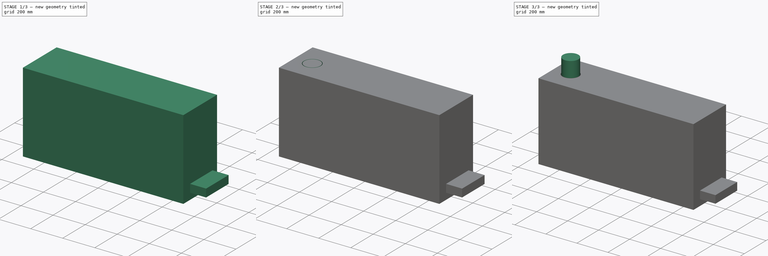
[diagram: build sequence overview — one tinted view per stage of 3, left to right]
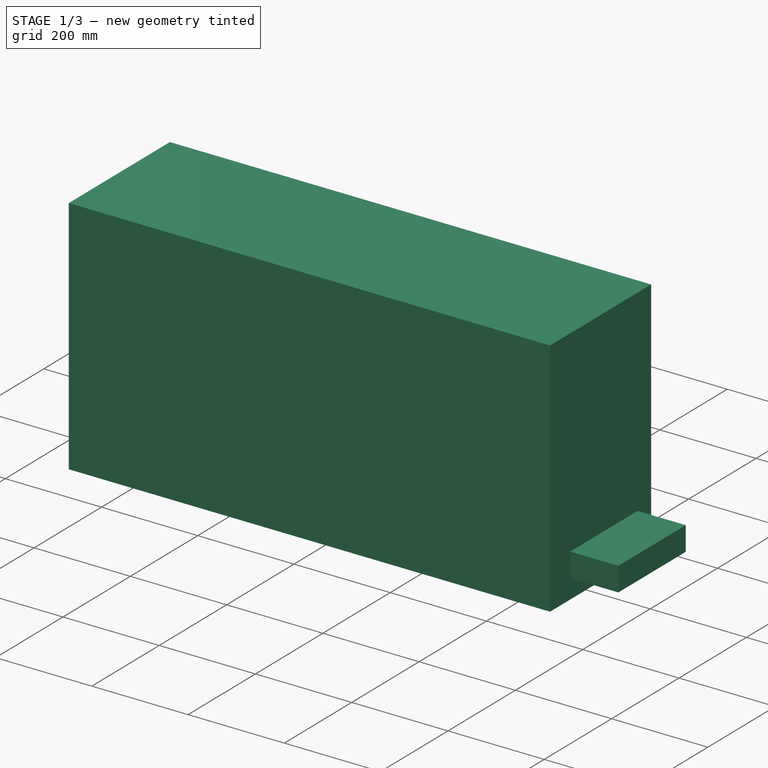
[diagram: stage 1 of 3 — iso view after this stage's code; geometry added in this stage tinted green]
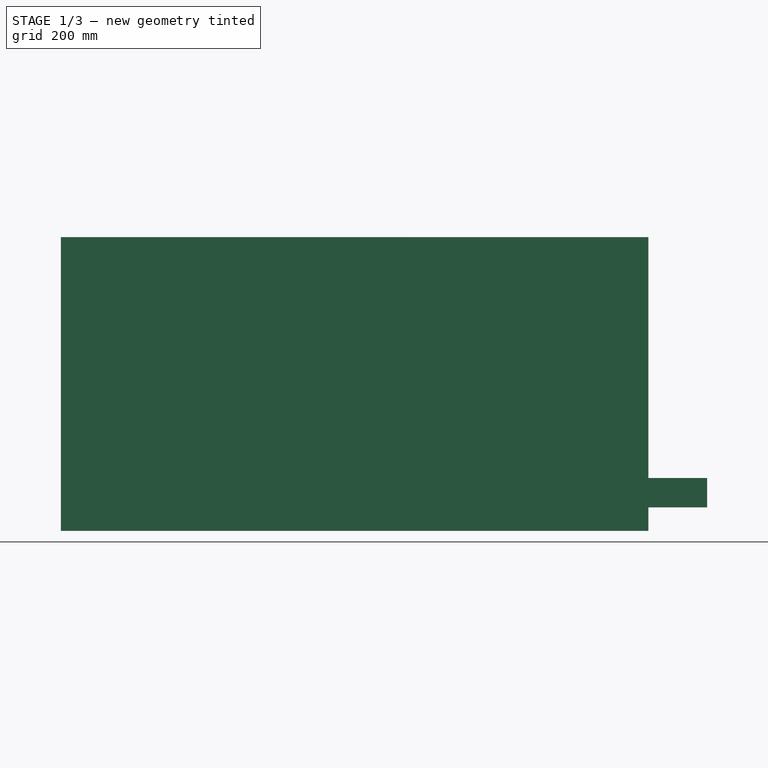
[diagram: stage 1 of 3 — front view after this stage's code; geometry added in this stage tinted green]
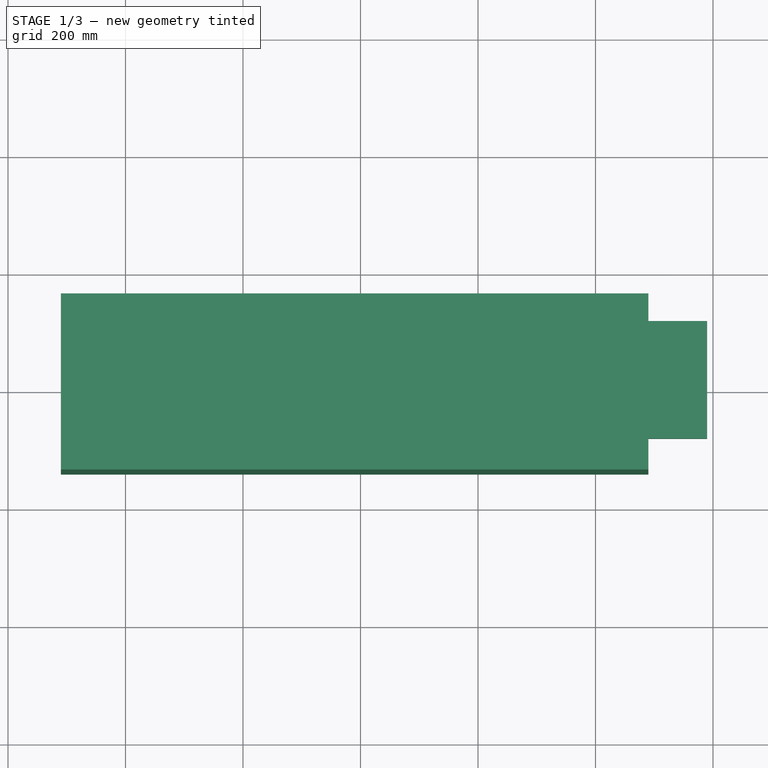
[diagram: stage 1 of 3 — top view after this stage's code; geometry added in this stage tinted green]
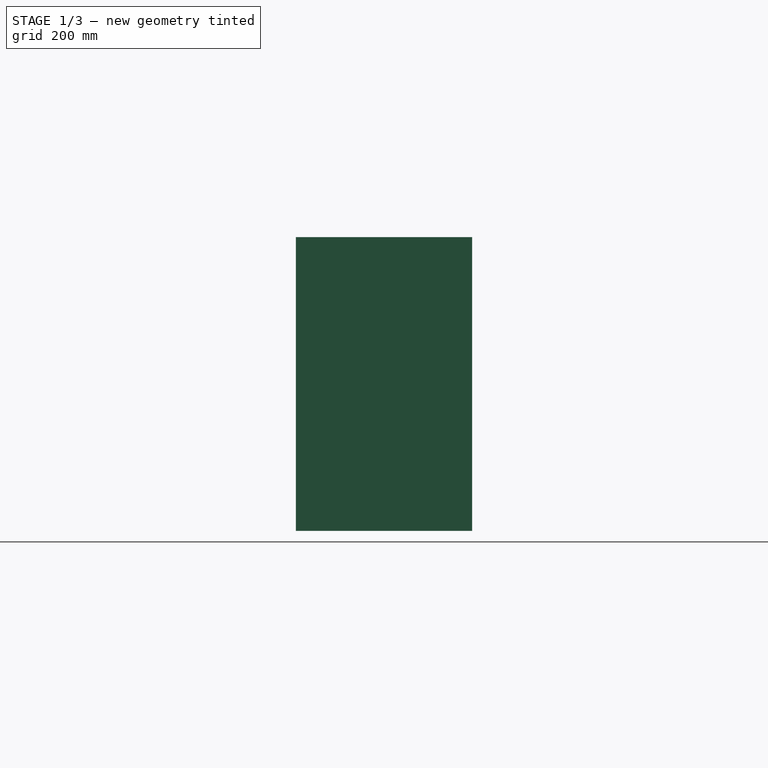
[diagram: stage 1 of 3 — right view after this stage's code; geometry added in this stage tinted green]
FCSTD DOCUMENT  (FreeCAD 0.21R33771 (Git))
Label: model
License: All rights reserved
LicenseURL: http://en.wikipedia.org/wiki/All_rights_reserved
objects: Part::Feature×15, Sketcher::SketchObject×2, PartDesign::Body×2, Part::Box×2, PartDesign::Revolution×1, Part::Cut×1, PartDesign::FeatureBase×1, PartDesign::Pad×1
note: 27 computed .brp shape members not serialized (recipe doc carries the construction recipe); baked Part::Feature solids carry a one-line shape summary decoded from their .brp

FEATURE [PartDesign::Body] Body
  Group = -> [Sketch,Revolution]
  Origin = -> Origin
  Tip = -> Revolution
FEATURE [Part::Box] Box  label="立方体"
  AttacherType = Attacher::AttachEngine3D
  Height = 500
  Length = 1000
  Placement = pos=(-110,-140,0) rot=(0,0,1;0rad)
  Width = 300
FEATURE [PartDesign::Body] Body001
  BaseFeature = -> Cut
  Group = -> [BaseFeature,Sketch001,Pad]
  Origin = -> Origin001
  Tip = -> Pad
FEATURE [Part::Box] Box001  label="立方体001"
  AttacherType = Attacher::AttachEngine3D
  Height = 50
  Length = 100
  Placement = pos=(890,-80,40) rot=(0,0,1;0rad)
  Width = 200
FEATURE [Part::Feature] Face  label="pumpInTop2"
  shape: bbox 100 x 100 x 100 mm, 1 faces, 0 solids (baked)
FEATURE [Part::Feature] Face001  label="pumpInTop1"
  shape: bbox 100 x 100 x 350 mm, 1 faces, 0 solids (baked)
FEATURE [Part::Feature] Face002  label="outlet"
  Placement = pos=(0,0,100) rot=(0,0,1;0rad)
  shape: bbox 100 x 100 x 2e-07 mm, 1 faces, 0 solids (baked)
FEATURE [Part::Feature] Face005  label="pumpInUnder"
  shape: bbox 156 x 156 x 2e-07 mm, 1 faces, 0 solids (baked)
FEATURE [Part::Feature] Face008  label="pumpOutTop"
  shape: bbox 106 x 106 x 350.7 mm, 1 faces, 0 solids (baked)
FEATURE [Part::Feature] Face009  label="Zmax"
  shape: bbox 1000 x 300 x 2e-07 mm, 1 faces, 0 solids (baked)
FEATURE [Part::Feature] Face010  label="Xmin"
  Placement = pos=(-110,-140,0) rot=(0,0,1;0rad)
  shape: bbox 2e-07 x 300 x 500 mm, 1 faces, 0 solids (baked)
FEATURE [Part::Feature] Face011  label="Ymax"
  Placement = pos=(-110,-140,0) rot=(0,0,1;0rad)
  shape: bbox 1000 x 2e-07 x 500 mm, 1 faces, 0 solids (baked)
FEATURE [Part::Feature] Face012  label="Ymin"
  Placement = pos=(-110,-140,0) rot=(0,0,1;0rad)
  shape: bbox 1000 x 2e-07 x 500 mm, 1 faces, 0 solids (baked)
FEATURE [Part::Feature] Face013  label="Xmax"
  shape: bbox 2e-07 x 300 x 500 mm, 1 faces, 0 solids (baked)
FEATURE [Part::Feature] Face014  label="Zmin"
  Placement = pos=(-110,-140,0) rot=(0,0,1;0rad)
  shape: bbox 1000 x 300 x 2e-07 mm, 1 faces, 0 solids (baked)
FEATURE [Part::Feature] Face019  label="inlet"
  Placement = pos=(890,-80,40) rot=(0,0,1;0rad)
  shape: bbox 2e-07 x 200 x 50 mm, 1 faces, 0 solids (baked)
FEATURE [Part::Feature] Shell  label="inletWall"
  shape: bbox 100 x 200 x 50 mm, 4 faces, 0 solids (baked)
FEATURE [Part::Feature] Shell001  label="pumpOutUnder"
  shape: bbox 156 x 156 x 49.26 mm, 2 faces, 0 solids (baked)
FEATURE [Part::Feature] Shell002  label="pumpInUnder001"
  shape: bbox 150 x 150 x 50 mm, 2 faces, 0 solids (baked)
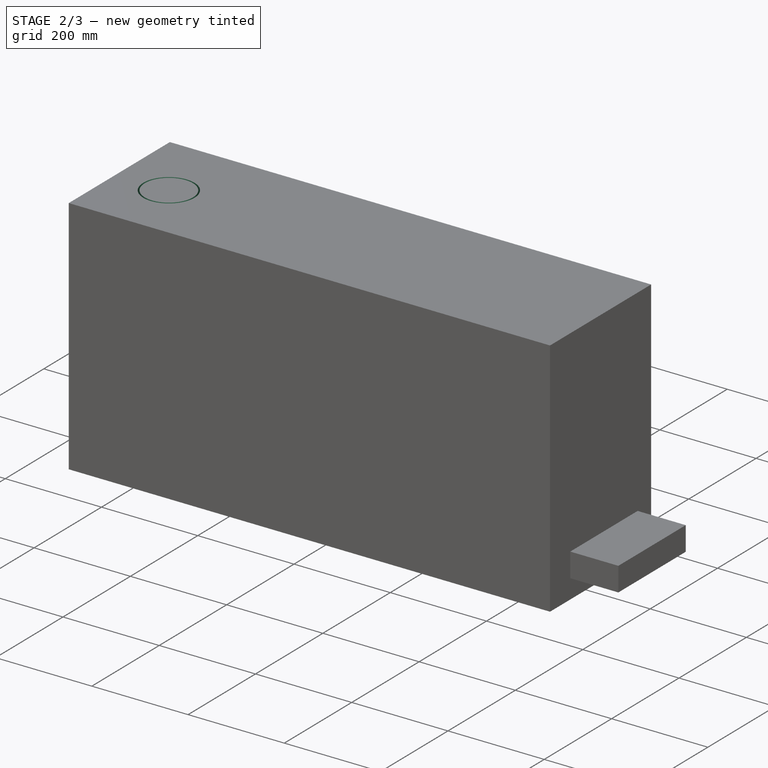
[diagram: stage 2 of 3 — iso view after this stage's code; geometry added in this stage tinted green]
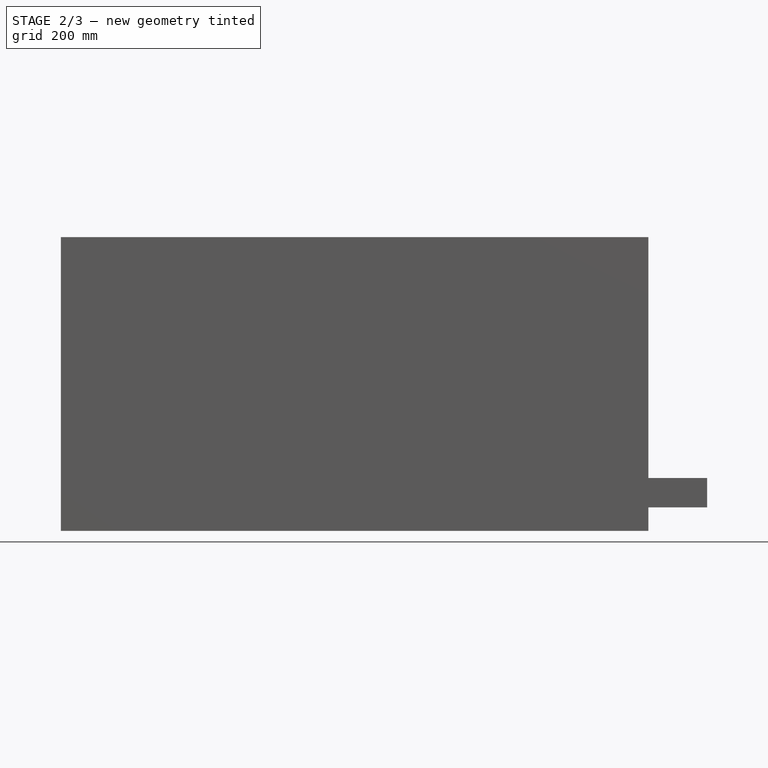
[diagram: stage 2 of 3 — front view after this stage's code; geometry added in this stage tinted green]
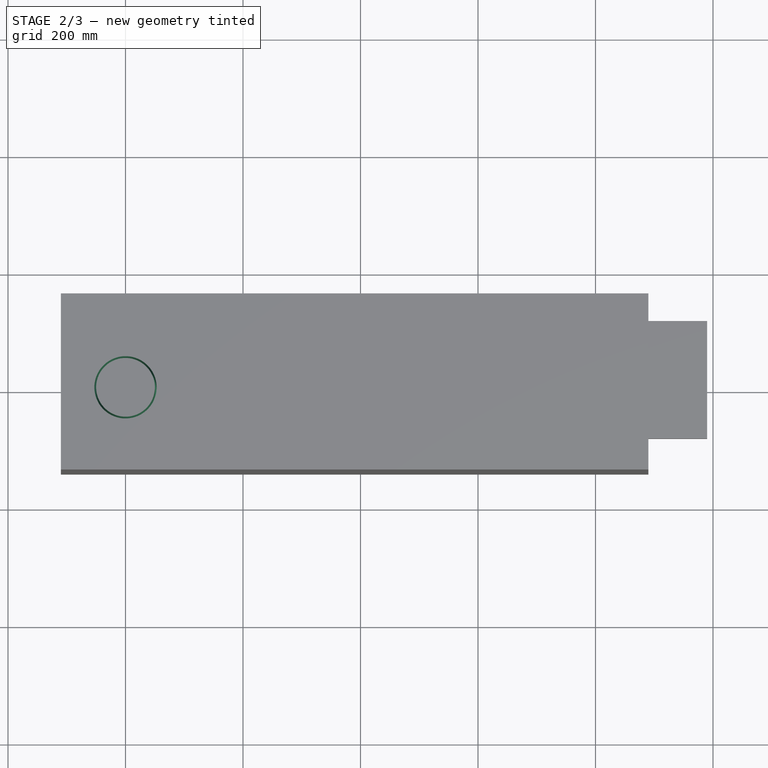
[diagram: stage 2 of 3 — top view after this stage's code; geometry added in this stage tinted green]
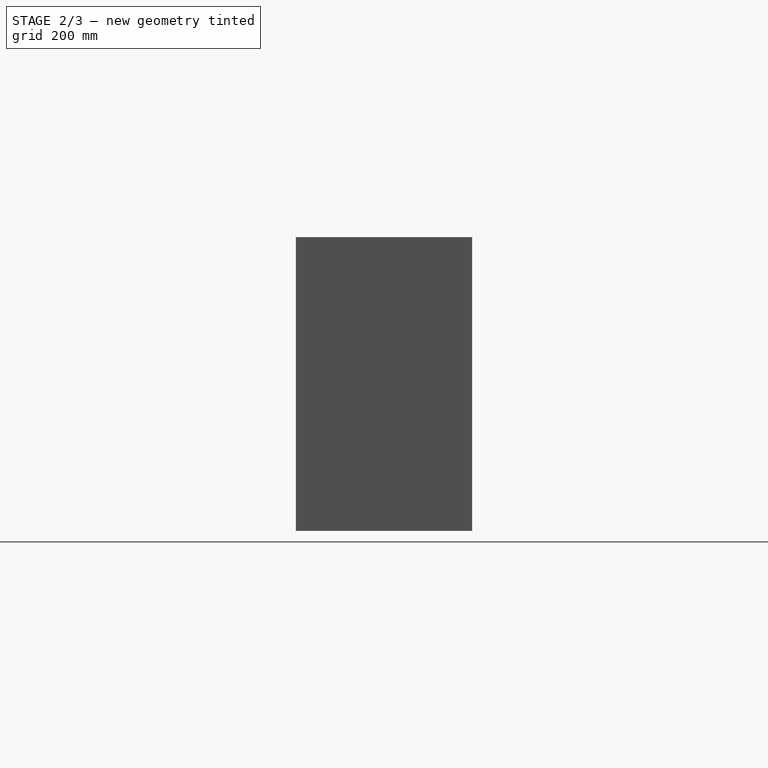
[diagram: stage 2 of 3 — right view after this stage's code; geometry added in this stage tinted green]
FEATURE [Sketcher::SketchObject] Sketch
  FullyConstrained = true
  MapMode = 5
  Placement = pos=(0,0,0) rot=(1,0,0;1.5708rad)
  Support = -> [XZ_Plane]
  sketch-geometry (8):
    g0: LineSegment StartX=-50 StartY=649.259 StartZ=0 EndX=-50 EndY=150 EndZ=0
    g1: LineSegment StartX=-51.1496 StartY=145.345 StartZ=0 EndX=-75 EndY=100 EndZ=0
    g2: LineSegment StartX=-75 StartY=100 StartZ=0 EndX=-78 EndY=100 EndZ=0
    g3: LineSegment StartX=-78 StartY=100 StartZ=0 EndX=-53.8047 EndY=146.001 EndZ=0
    g4: LineSegment StartX=-53 StartY=149.259 StartZ=0 EndX=-53 EndY=649.259 EndZ=0
    g5: LineSegment StartX=-53 StartY=649.259 StartZ=0 EndX=-50 EndY=649.259 EndZ=0
    g6: ArcOfCircle CenterX=-60 CenterY=149.259 CenterZ=0 NormalX=0 NormalY=0 NormalZ=1 AngleXU=0 Radius=7 StartAngle=5.79897 EndAngle=6.28319
    g7: ArcOfCircle CenterX=-60 CenterY=150 CenterZ=0 NormalX=0 NormalY=0 NormalZ=1 AngleXU=0 Radius=10 StartAngle=5.79897 EndAngle=6.28319
  constraints (22):
    c: Vertical(g0)
    c: Coincident(g1,g2)
    c: Horizontal(g2)
    c: Coincident(g2,g3)
    c: Vertical(g4)
    c: Coincident(g4,g5)
    c: Coincident(g5,g0)
    c: Horizontal(g5)
    c: Parallel(g1,g3)
    c: DistanceX(g1,g-1) = 75
    c: DistanceX(g2,g2) = 3
    c: DistanceX(g5,g5) = 3
    c: DistanceY(g-1,g1) = 100
    c: Tangent(g4,g6) = -1.5708
    c: Tangent(g3,g6) = -1.5708
    c: Tangent(g0,g7) = 1.5708
    c: Tangent(g1,g7) = 1.5708
    c: Radius(g7) = 10
    c: Radius(g6) = 7
    c: DistanceY(g1,g7) = 50
    c: DistanceX(g0,g-1) = 50
    c: DistanceY(g6,g4) = 500
FEATURE [PartDesign::Revolution] Revolution
  Angle = 360
  Axis = (0,-2e-16,1)
  Base = (0,0,0)
  Placement = pos=(0,0,0) rot=(1,0,0;1.5708rad)
  Profile = -> Sketch
  ReferenceAxis = -> Sketch [V_Axis]
FEATURE [Part::Cut] Cut
  Base = -> Box
  Tool = -> Body
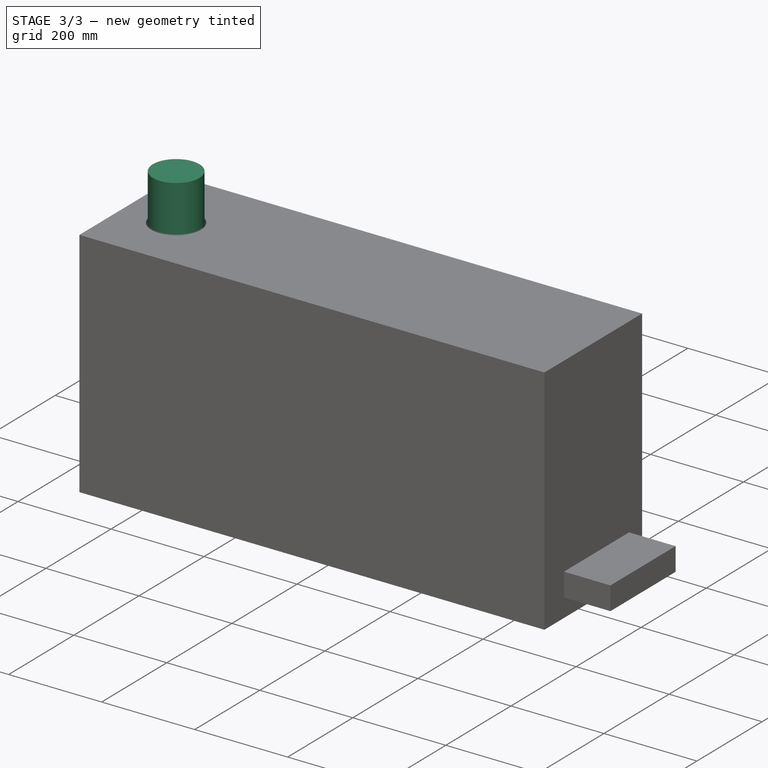
[diagram: stage 3 of 3 — iso view after this stage's code; geometry added in this stage tinted green]
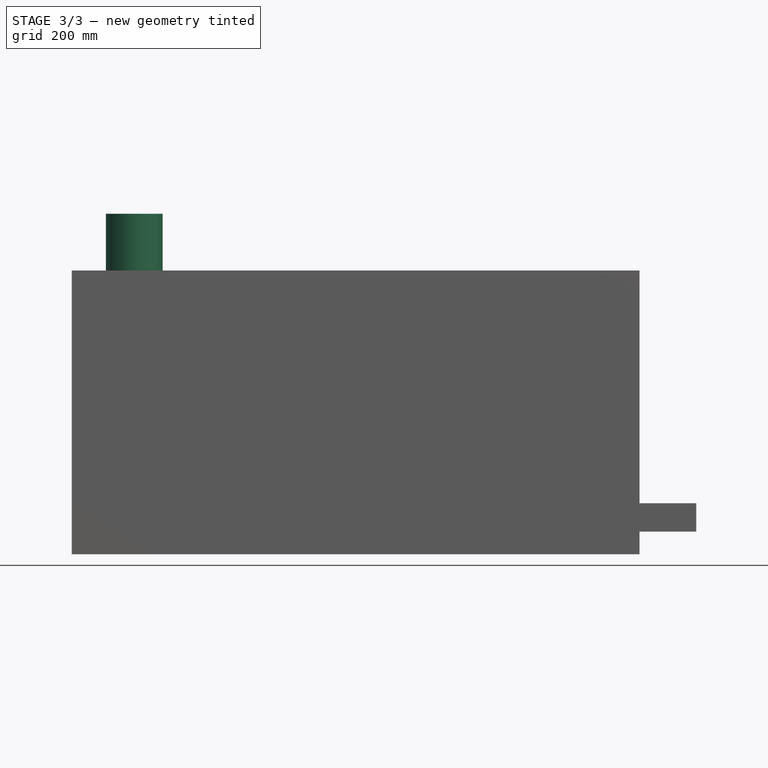
[diagram: stage 3 of 3 — front view after this stage's code; geometry added in this stage tinted green]
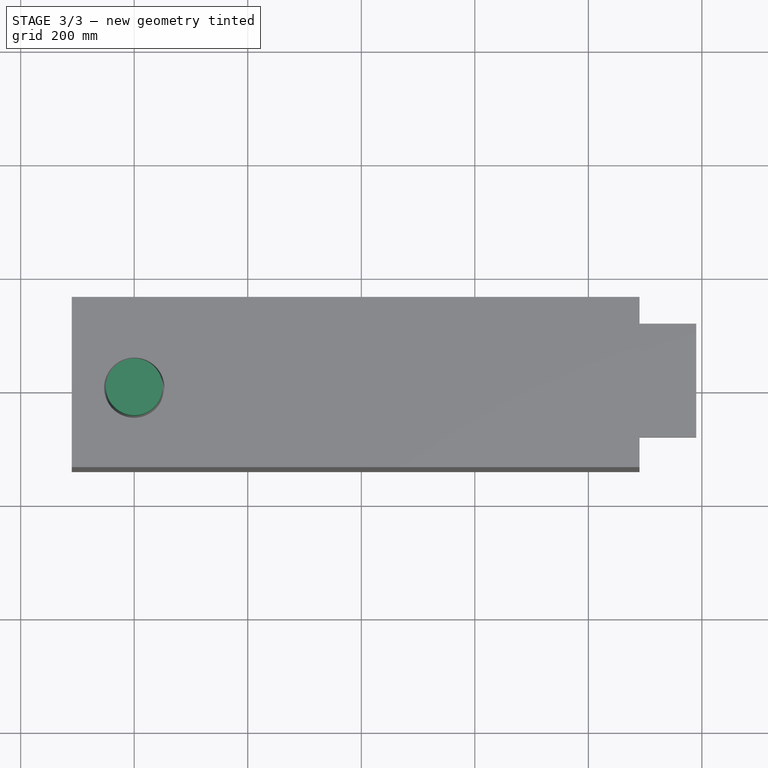
[diagram: stage 3 of 3 — top view after this stage's code; geometry added in this stage tinted green]
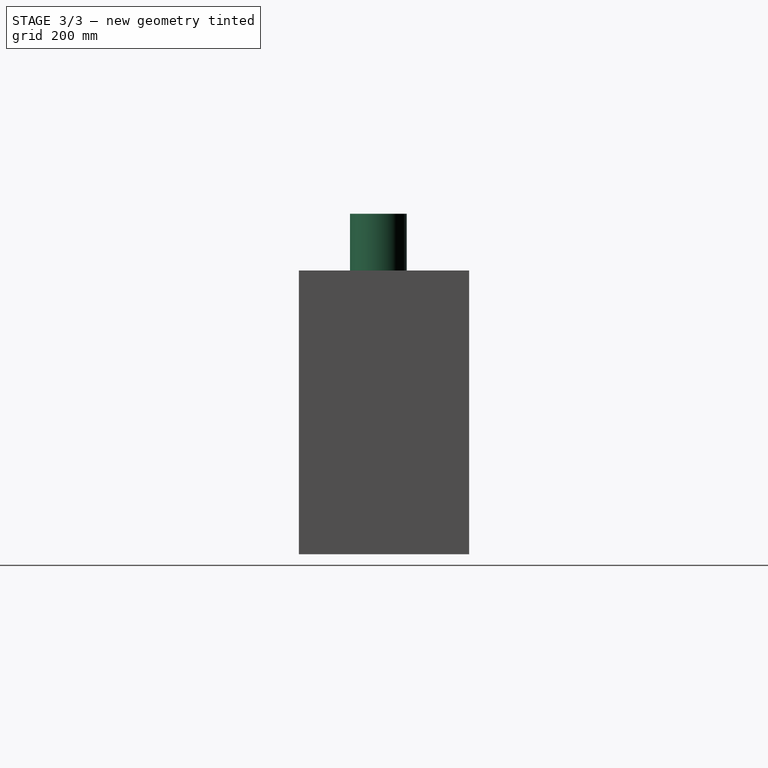
[diagram: stage 3 of 3 — right view after this stage's code; geometry added in this stage tinted green]
FEATURE [PartDesign::FeatureBase] BaseFeature
  BaseFeature = -> Cut
FEATURE [Sketcher::SketchObject] Sketch001
  FullyConstrained = true
  MapMode = 5
  Placement = pos=(0,0,500) rot=(0,0,1;0rad)
  Support = -> [BaseFeature]
  sketch-geometry (1):
    g0: Circle CenterX=0 CenterY=0 CenterZ=0 NormalX=0 NormalY=0 NormalZ=1 AngleXU=0 Radius=50
  constraints (2):
    c: Coincident(g-1,g0)
    c: Radius(g0) = 50
FEATURE [PartDesign::Pad] Pad
  BaseFeature = -> BaseFeature
  Direction = (0,0,1)
  Length = 100
  Length2 = 10
  Profile = -> Sketch001
  ReferenceAxis = -> Sketch001 [N_Axis]
  Type = 0
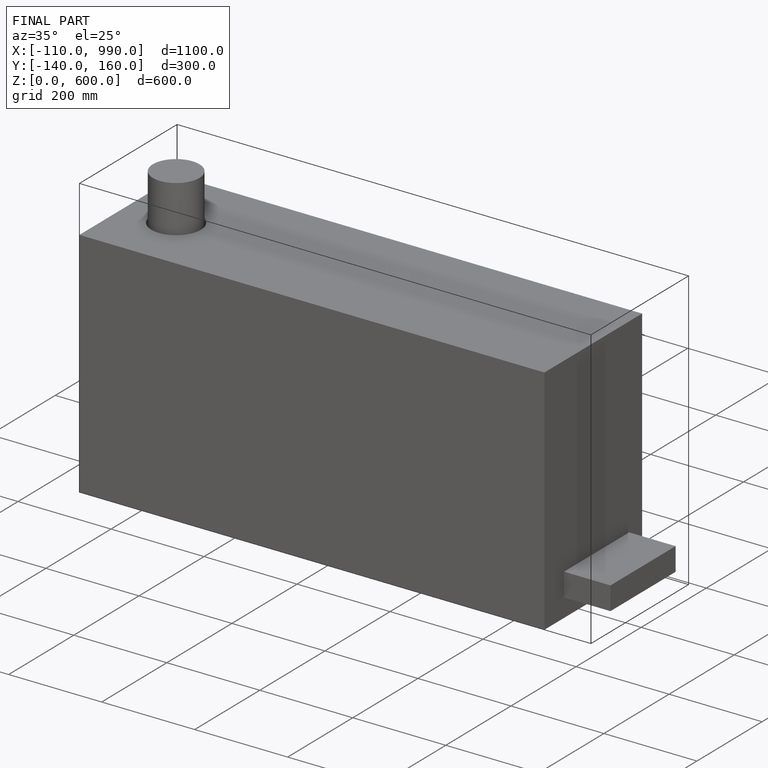
[diagram: finished part — iso view with bounding-box wireframe]
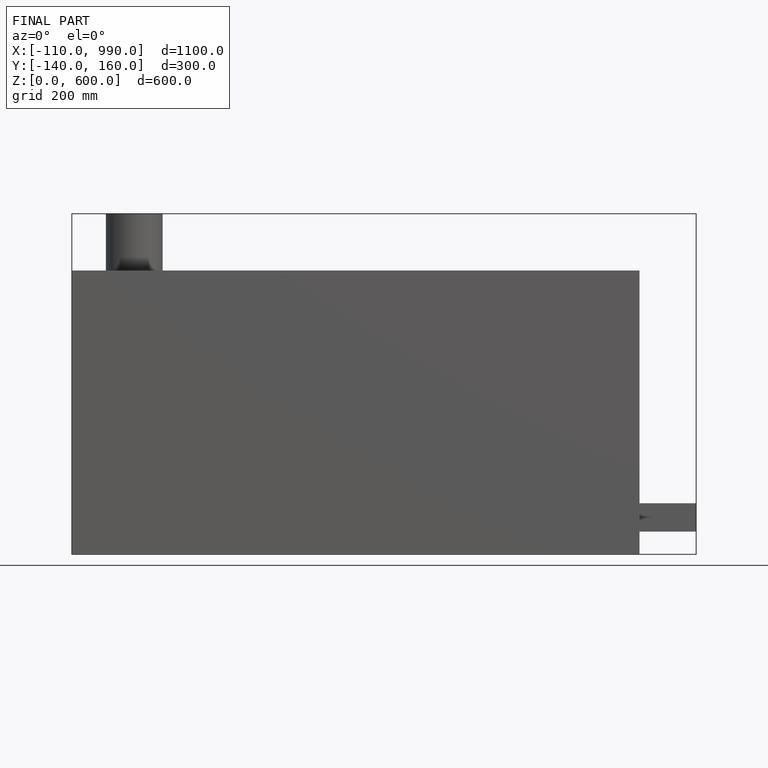
[diagram: finished part — front view with bounding-box wireframe]
